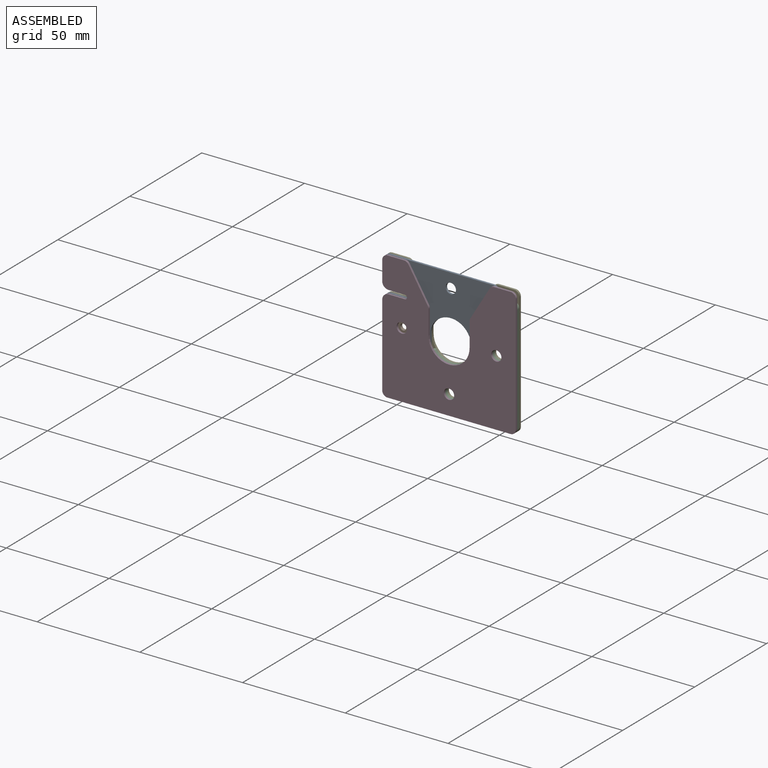
[diagram: assembled view]
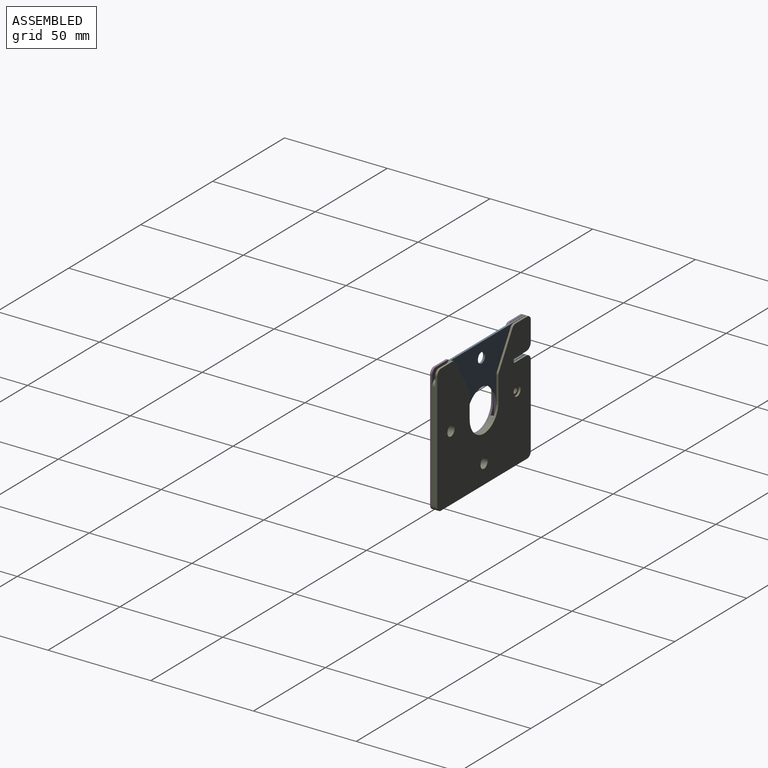
[diagram: assembled view, second angle]
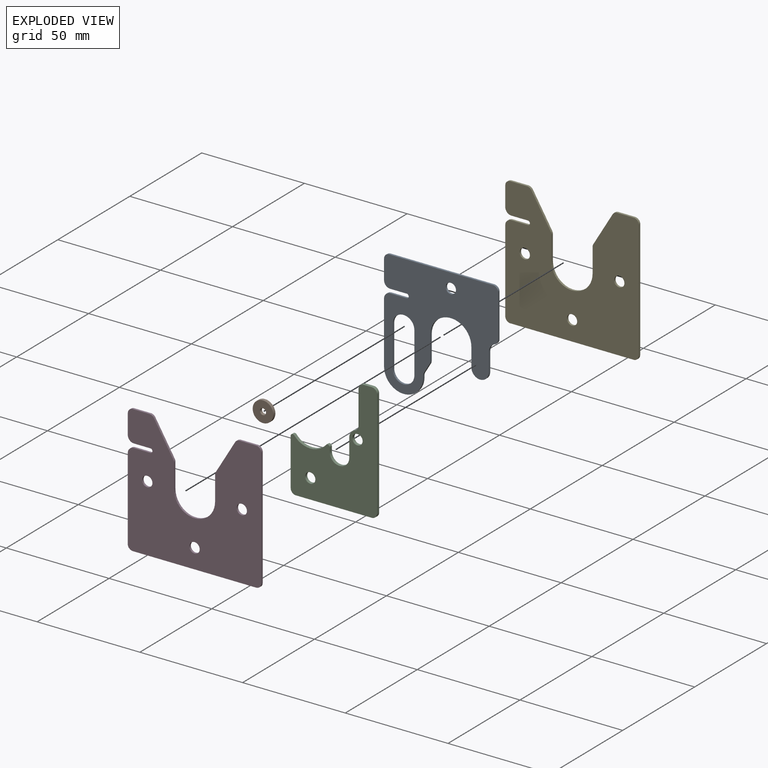
[diagram: exploded view]
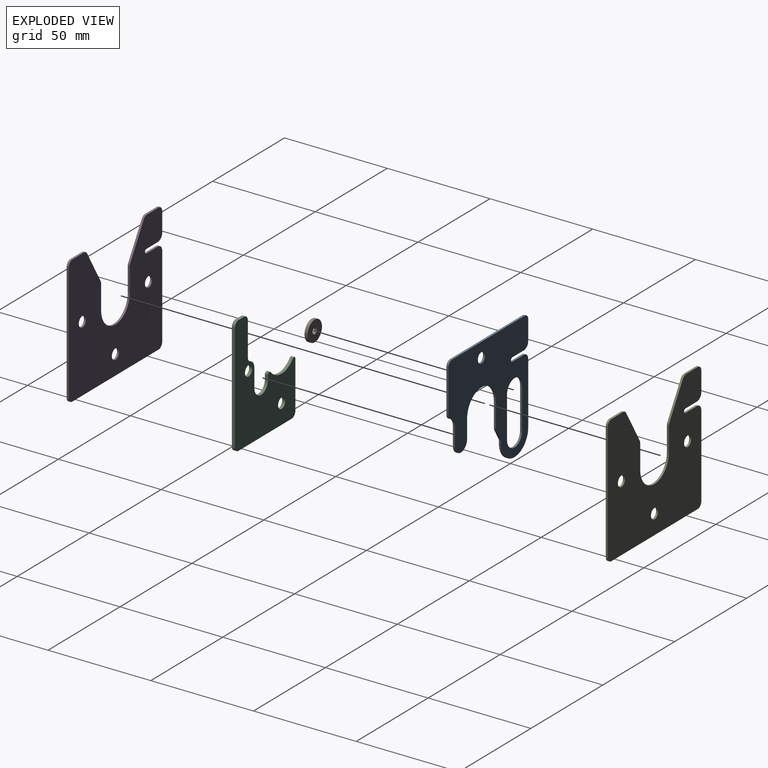
[diagram: exploded view, second angle]
ASSEMBLY  parts=5 mates=4
PART A: 30 faces, bbox 55.5x1x59.5 mm
  f0: plane 9.5x1mm, normal (1,0,0), area 9.5mm2, adj f18,f19,f24,f27
  f1: plane 20x1mm, normal (-1,0,0), area 20mm2, adj f2,f15,f18,f19
  f2: cylinder r=5.25mm len=10.5mm, axis (0,1,0), area 16.5mm2, adj f1,f3,f18,f19
  f3: plane 20x1mm, normal (1,0,0), area 20mm2, adj f2,f15,f18,f19
  f4: cylinder r=9.5mm len=19mm, axis (0,1,0), area 29.8mm2, adj f5,f16,f18,f19
  f5: plane 1x0.97mm, normal (-1,0,0), area 1mm2, adj f4,f18,f19,f20
  f6: plane 4.65x2.79mm, normal (-0.86,0,0.51), area 5.4mm2, adj f18,f19,f20,f21
  f7: plane 11.81x1mm, normal (-1,0,0), area 11.8mm2, adj f8,f18,f19,f21
  f8: cylinder r=10mm len=20mm, axis (0,1,0), area 31.4mm2, adj f7,f9,f18,f19
  f9: plane 9x1mm, normal (1,0,0), area 9mm2, adj f8,f10,f18,f19
  f10: cylinder r=4.25mm len=8.5mm, axis (0,1,0), area 13.4mm2, adj f9,f11,f18,f19
  f11: plane 9x1mm, normal (-1,0,0), area 9mm2, adj f10,f12,f18,f19
  f12: cylinder r=4.5mm len=4.2mm, axis (0,1,0), area 5.4mm2, adj f11,f18,f19,f22
  f13: plane 20.96x1mm, normal (-1,0,0), area 21mm2, adj f18,f19,f22,f23
  f14: plane 50.5x1mm, normal (0,0,-1), area 50.5mm2, adj f18,f19,f23,f24
  f15: cylinder r=5.25mm len=10.5mm, axis (0,1,0), area 16.5mm2, adj f1,f3,f18,f19
  f16: plane 30x1mm, normal (1,0,0), area 30mm2, adj f4,f18,f19,f28
  f17: cylinder r=2.5mm len=5mm, axis (0,1,0), area 15.7mm2, adj f18,f19
  f18: plane 59.5x55.5mm, normal (0,-1,0), area 1825.6mm2, adj f0,f1,f2,f3,f4,f5,f6,f7
  f19: plane 59.5x55.5mm, normal (0,1,0), area 1825.6mm2, adj f0,f1,f2,f3,f4,f5,f6,f7
  f20: cylinder r=2.5mm len=1.29mm, axis (0,-1,0), area 1.4mm2, adj f5,f6,f18,f19
  f21: cylinder r=2.5mm len=1.29mm, axis (0,-1,0), area 1.4mm2, adj f6,f7,f18,f19
  f22: cylinder r=2.5mm len=2.34mm, axis (0,1,0), area 3mm2, adj f12,f13,f18,f19
  f23: cylinder r=2.5mm len=2.5mm, axis (0,1,0), area 3.9mm2, adj f13,f14,f18,f19
  f24: cylinder r=2.5mm len=2.5mm, axis (0,-1,0), area 3.9mm2, adj f0,f14,f18,f19
  f25: plane 8x1mm, normal (0,0,1), area 8mm2, adj f18,f19,f27,f29
  f26: plane 8x1mm, normal (0,0,-1), area 8mm2, adj f18,f19,f28,f29
  f27: cylinder r=3mm len=3mm, axis (0,1,0), area 4.7mm2, adj f0,f18,f19,f25
  f28: cylinder r=3mm len=3mm, axis (0,1,0), area 4.7mm2, adj f16,f18,f19,f26
  f29: cylinder r=1mm len=2mm, axis (0,1,0), area 3.1mm2, adj f18,f19,f25,f26
PART B: 4 faces, bbox 10x1.5x10 mm
  f0: cylinder r=1.5mm len=3mm, axis (0,1,0), area 14.1mm2, adj f2,f3
  f1: cylinder r=5mm len=10mm, axis (0,1,0), area 47.1mm2, adj f2,f3
  f2: plane 10x10mm, normal (0,-1,0), area 71.5mm2, adj f0,f1
  f3: plane 10x10mm, normal (0,1,0), area 71.5mm2, adj f0,f1
PART C: 21 faces, bbox 42x1.5x57.5 mm
  f0: plane 37x1.5mm, normal (0,0,1), area 55.5mm2, adj f12,f13,f14,f15
  f1: plane 52.48x1.5mm, normal (-1,0,0), area 78.7mm2, adj f12,f13,f15,f16
  f2: plane 3.98x1.5mm, normal (0.01,0,-1), area 6mm2, adj f12,f13,f16,f17
  f3: plane 16.35x1.5mm, normal (1,0,0), area 24.5mm2, adj f12,f13,f17,f18
  f4: cylinder r=4mm len=3.81mm, axis (0,1,0), area 7.6mm2, adj f5,f12,f13,f18
  f5: plane 8.88x1.5mm, normal (1,0,0), area 13.3mm2, adj f4,f6,f12,f13
  f6: cylinder r=4.75mm len=9.5mm, axis (0,1,0), area 22.6mm2, adj f5,f7,f12,f13
  f7: plane 2.12x1.5mm, normal (-1,0,0), area 3.2mm2, adj f6,f12,f13,f20
  f8: cylinder r=10mm len=15.45mm, axis (0,1,0), area 26.5mm2, adj f12,f13,f19,f20
  f9: cylinder r=2.5mm len=5mm, axis (0,1,0), area 23.6mm2, adj f12,f13
  f10: plane 23.02x1.5mm, normal (1,0,0), area 34.5mm2, adj f12,f13,f14,f19
  f11: cylinder r=2.5mm len=5mm, axis (0,1,0), area 23.6mm2, adj f12,f13
  f12: plane 57.48x42mm, normal (0,-1,0), area 1278.5mm2, adj f0,f1,f2,f3,f4,f5,f6,f7
  f13: plane 57.48x42mm, normal (0,1,0), area 1278.5mm2, adj f0,f1,f2,f3,f4,f5,f6,f7
  f14: cylinder r=2.5mm len=2.5mm, axis (0,1,0), area 5.9mm2, adj f0,f10,f12,f13
  f15: cylinder r=2.5mm len=2.5mm, axis (0,1,0), area 5.9mm2, adj f0,f1,f12,f13
  f16: cylinder r=2.5mm len=2.52mm, axis (0,-1,0), area 5.9mm2, adj f1,f2,f12,f13
  f17: cylinder r=2.5mm len=2.5mm, axis (0,-1,0), area 5.9mm2, adj f2,f3,f12,f13
  f18: cylinder r=2.5mm len=2.38mm, axis (0,1,0), area 4.7mm2, adj f3,f4,f12,f13
  f19: cylinder r=1mm len=1.77mm, axis (0,1,0), area 3.7mm2, adj f8,f10,f12,f13
  f20: cylinder r=1mm len=1.77mm, axis (0,1,0), area 3.7mm2, adj f7,f8,f12,f13
PART D: 29 faces, bbox 65x1x62.5 mm
  f0: plane 40x1mm, normal (-1,0,0), area 40mm2, adj f11,f12,f19,f27
  f1: cylinder r=10mm len=20mm, axis (0,1,0), area 31.4mm2, adj f2,f10,f11,f12
  f2: plane 11.81x1mm, normal (1,0,0), area 11.8mm2, adj f1,f11,f12,f16
  f3: plane 15.69x9.42mm, normal (0.86,0,0.51), area 18.3mm2, adj f11,f12,f16,f17
  f4: plane 8.08x1mm, normal (0,0,1), area 8.1mm2, adj f11,f12,f17,f18
  f5: plane 9.5x1mm, normal (-1,0,0), area 9.5mm2, adj f11,f12,f18,f26
  f6: plane 60x1mm, normal (0,0,-1), area 60mm2, adj f11,f12,f19,f20
  f7: plane 57.5x1mm, normal (1,0,0), area 57.5mm2, adj f11,f12,f20,f21
  f8: plane 8.08x1mm, normal (0,0,1), area 8.1mm2, adj f11,f12,f21,f22
  f9: plane 15.69x9.42mm, normal (-0.86,0,0.51), area 18.3mm2, adj f11,f12,f22,f23
  f10: plane 11.81x1mm, normal (-1,0,0), area 11.8mm2, adj f1,f11,f12,f23
  f11: plane 65x62.5mm, normal (0,-1,0), area 3029.2mm2, adj f0,f1,f2,f3,f4,f5,f6,f7
  f12: plane 65x62.5mm, normal (0,1,0), area 3029.2mm2, adj f0,f1,f2,f3,f4,f5,f6,f7
  f13: cylinder r=2.5mm len=5mm, axis (0,-1,0), area 15.7mm2, adj f11,f12
  f14: cylinder r=2.5mm len=5mm, axis (0,-1,0), area 15.7mm2, adj f11,f12
  f15: cylinder r=2.5mm len=5mm, axis (0,-1,0), area 15.7mm2, adj f11,f12
  f16: cylinder r=2.5mm len=1.29mm, axis (0,-1,0), area 1.4mm2, adj f2,f3,f11,f12
  f17: cylinder r=2.5mm len=2.14mm, axis (0,-1,0), area 2.6mm2, adj f3,f4,f11,f12
  f18: cylinder r=2.5mm len=2.5mm, axis (0,1,0), area 3.9mm2, adj f4,f5,f11,f12
  f19: cylinder r=2.5mm len=2.5mm, axis (0,1,0), area 3.9mm2, adj f0,f6,f11,f12
  f20: cylinder r=2.5mm len=2.5mm, axis (0,-1,0), area 3.9mm2, adj f6,f7,f11,f12
  f21: cylinder r=2.5mm len=2.5mm, axis (0,1,0), area 3.9mm2, adj f7,f8,f11,f12
  f22: cylinder r=2.5mm len=2.14mm, axis (0,1,0), area 2.6mm2, adj f8,f9,f11,f12
  f23: cylinder r=2.5mm len=1.29mm, axis (0,1,0), area 1.4mm2, adj f9,f10,f11,f12
  f24: plane 8x1mm, normal (0,0,-1), area 8mm2, adj f11,f12,f26,f28
  f25: plane 8x1mm, normal (0,0,1), area 8mm2, adj f11,f12,f27,f28
  f26: cylinder r=3mm len=3mm, axis (0,-1,0), area 4.7mm2, adj f5,f11,f12,f24
  f27: cylinder r=3mm len=3mm, axis (0,-1,0), area 4.7mm2, adj f0,f11,f12,f25
  f28: cylinder r=1mm len=2mm, axis (0,1,0), area 3.1mm2, adj f11,f12,f24,f25
PART E: same geometry as D
PLACE A rot(axis=(0,1,0),180deg) t=(-125.26,3.26,0.36)mm
PLACE B t=(-148.26,3.51,0.36)mm
PLACE C rot(axis=(0,1,0),180deg) t=(-125.26,3.51,0.36)mm
PLACE D t=(-125.26,2.01,0.36)mm fixed
PLACE E t=(-125.26,4.51,0.36)mm
MATE fastened C.f9 <-> D.f13  axis (0,-1,0) through (-125.26,2.01,-22.64)mm
MATE cylindrical A.f2 <-> B.f1  axis (0,1,0) through (-148.26,2.76,0.36)mm
MATE fastened B.f0 <-> D.f14  axis (0,-1,0) through (-148.26,2.01,0.36)mm
MATE fastened E.f13 <-> C.f9  axis (0,-1,0) through (-125.26,3.51,-22.64)mm
